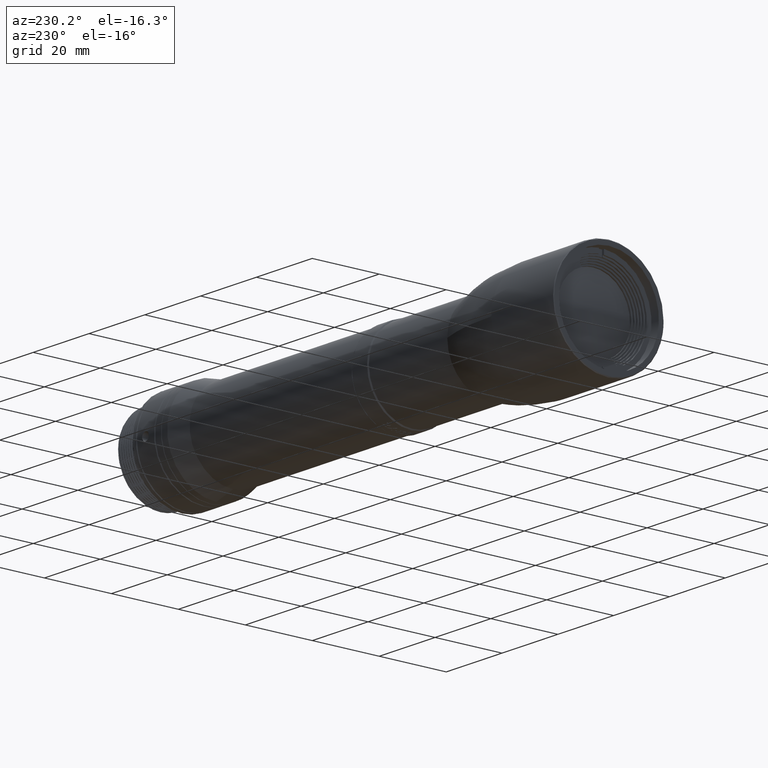
[diagram: clean part render]
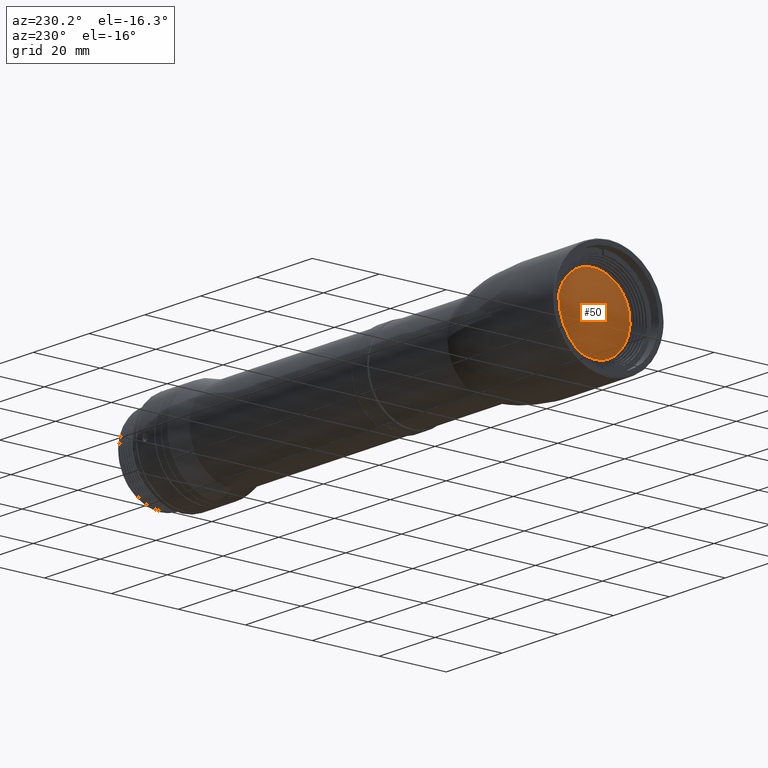
[diagram: same view with one face highlighted and labeled with its STEP entity id]
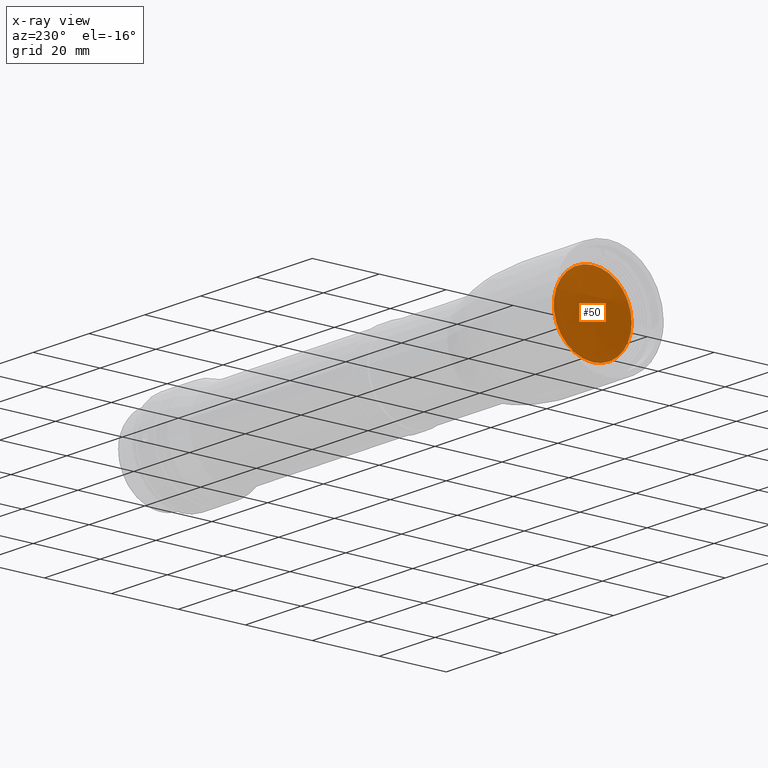
[diagram: x-ray of the same camera — body ghosted, the highlighted face saturated]
A machine part, auxiliary view. The second image highlights one B-rep face of the part: STEP entity #50.
The next image is the same camera in x-ray: the body ghosted, the highlighted face saturated — about 0% of this face is hidden behind the body in this view.
In plain terms, the highlighted spherical surface has radius 49.12 mm.
Its self-contained STEP definition (entity closure, byte-faithful):
#50 = ADVANCED_FACE ( 'NONE', ( #10798 ), #18882, .T. ) ;
#981 = CARTESIAN_POINT ( 'NONE',  ( -36.50199488786080337, -11.33269020556032025, -3.045575873392386335 ) ) ;
#1001 = CARTESIAN_POINT ( 'NONE',  ( -36.50199488786087443, -10.16696944636892219, 5.859874740196715059 ) ) ;
#1130 = CARTESIAN_POINT ( 'NONE',  ( -36.50199488786086022, -5.859874743063551605, 10.16696944471658526 ) ) ;
#1262 = CARTESIAN_POINT ( 'NONE',  ( -36.50199488786086732, -9.304549101088852581, 7.150577998988715933 ) ) ;
#1735 = AXIS2_PLACEMENT_3D ( 'NONE', #24799, #16702, #24660 ) ;
#2969 = CARTESIAN_POINT ( 'NONE',  ( -36.50199488786087443, -11.33269020537959904, 3.045575873802476519 ) ) ;
#4489 = CARTESIAN_POINT ( 'NONE',  ( -36.50199488786085311, -3.045575873392573740, -11.33269020555996143 ) ) ;
#5284 = VERTEX_POINT ( 'NONE', #9296 ) ;
#5535 = EDGE_CURVE ( 'NONE', #5284, #10831, #7156, .T. ) ;
#5987 = ORIENTED_EDGE ( 'NONE', *, *, #15617, .T. ) ;
#6217 = ORIENTED_EDGE ( 'NONE', *, *, #23699, .T. ) ;
#7156 = CIRCLE ( 'NONE', #1735, 11.63553195799999251 ) ;
#8386 = CARTESIAN_POINT ( 'NONE',  ( -36.50199488786082469, -10.16696944613204145, -5.859874740743902244 ) ) ;
#8649 = CARTESIAN_POINT ( 'NONE',  ( -36.50199488801369796, -1.741335095613839332E-10, -11.63553195806885299 ) ) ;
#8915 = VERTEX_POINT ( 'NONE', #12259 ) ;
#9296 = CARTESIAN_POINT ( 'NONE',  ( -36.50199488802316239, -4.375226751184053414E-09, 11.63553195803001650 ) ) ;
#10536 = DIRECTION ( 'NONE',  ( 2.651745306490941396E-15, -0.000000000000000000, 1.000000000000000000 ) ) ;
#10621 = CARTESIAN_POINT ( 'NONE',  ( -36.50199488786083180, -9.304549100450127952, -7.150577999931376105 ) ) ;
#10798 = FACE_OUTER_BOUND ( 'NONE', #24791, .T. ) ;
#10831 = VERTEX_POINT ( 'NONE', #25680 ) ;
#11174 = CARTESIAN_POINT ( 'NONE',  ( -36.50199488803091441, -11.63553195775230797, 5.968097542716154351E-10 ) ) ;
#12259 = CARTESIAN_POINT ( 'NONE',  ( -36.50199488803091441, -11.63553195775230797, 5.968097542716154351E-10 ) ) ;
#12307 = CARTESIAN_POINT ( 'NONE',  ( -36.50199488786083890, -7.150577999931577722, -9.304549100449875709 ) ) ;
#12565 = CARTESIAN_POINT ( 'NONE',  ( -36.50199488786085311, -1.523087571656627892, -11.63553195796608009 ) ) ;
#12850 = CARTESIAN_POINT ( 'NONE',  ( -36.50199488786086022, -3.045575876998021236, 11.33269020452082110 ) ) ;
#14843 = DIRECTION ( 'NONE',  ( 0.000000000000000000, 1.000000000000000000, 0.000000000000000000 ) ) ;
#14947 = CARTESIAN_POINT ( 'NONE',  ( -36.50199488786086022, -1.523087575907370761, 11.63553195734130696 ) ) ;
#15617 = EDGE_CURVE ( 'NONE', #10831, #8915, #20550, .T. ) ;
#16631 = CARTESIAN_POINT ( 'NONE',  ( -36.50199488802316239, -4.375226751184053414E-09, 11.63553195803001650 ) ) ;
#16657 = AXIS2_PLACEMENT_3D ( 'NONE', #20439, #10536, #14843 ) ;
#16702 = DIRECTION ( 'NONE',  ( -1.000000000000000000, -1.018039645984843277E-15, 1.018039645776040276E-15 ) ) ;
#18574 = CARTESIAN_POINT ( 'NONE',  ( -36.50199488786078916, -11.63553195796647444, -1.523087571656428496 ) ) ;
#18697 = CARTESIAN_POINT ( 'NONE',  ( -36.50199488803091441, -11.63553195775230797, 5.968097542716154351E-10 ) ) ;
#18882 = SPHERICAL_SURFACE ( 'NONE', #16657, 49.12000000293112123 ) ;
#19116 = CARTESIAN_POINT ( 'NONE',  ( -36.50199488786088153, -11.63553195777077853, 1.523087572626427688 ) ) ;
#19915 = ORIENTED_EDGE ( 'NONE', *, *, #5535, .T. ) ;
#20439 = CARTESIAN_POINT ( 'NONE',  ( 11.22000000278787546, -8.765335846368201337E-14, 0.000000000000000000 ) ) ;
#20550 = B_SPLINE_CURVE_WITH_KNOTS ( 'NONE', 3,
 ( #8649, #12565, #4489, #22475, #12307, #10621, #8386, #981, #18574, #18697 ),
 .UNSPECIFIED., .F., .F.,
 ( 4, 2, 2, 2, 4 ),
 ( 0.000000000000000000, 0.2499999999999998890, 0.4999999999999997780, 0.7499999999999998890, 1.000000000000000000 ),
 .UNSPECIFIED. ) ;
#22475 = CARTESIAN_POINT ( 'NONE',  ( -36.50199488786083180, -5.859874740744088761, -10.16696944613175546 ) ) ;
#23699 = EDGE_CURVE ( 'NONE', #8915, #5284, #25364, .T. ) ;
#24660 = DIRECTION ( 'NONE',  ( -1.192707635362799537E-15, -7.544860032951918975E-16, -1.000000000000000000 ) ) ;
#24791 = EDGE_LOOP ( 'NONE', ( #19915, #5987, #6217 ) ) ;
#24799 = CARTESIAN_POINT ( 'NONE',  ( -36.50199488799999870, 8.778846003204893549E-15, -6.436166751339113092E-15 ) ) ;
#24863 = CARTESIAN_POINT ( 'NONE',  ( -36.50199488786086732, -7.150578001612377221, 9.304549099072563223 ) ) ;
#25364 = B_SPLINE_CURVE_WITH_KNOTS ( 'NONE', 3,
 ( #11174, #19116, #2969, #1001, #1262, #24863, #1130, #12850, #14947, #16631 ),
 .UNSPECIFIED., .F., .F.,
 ( 4, 2, 2, 2, 4 ),
 ( 0.000000000000000000, 0.2500000000000000000, 0.5000000000000000000, 0.7500000000000000000, 1.000000000000000000 ),
 .UNSPECIFIED. ) ;
#25680 = CARTESIAN_POINT ( 'NONE',  ( -36.50199488801369796, -1.741335095613839332E-10, -11.63553195806885299 ) ) ;